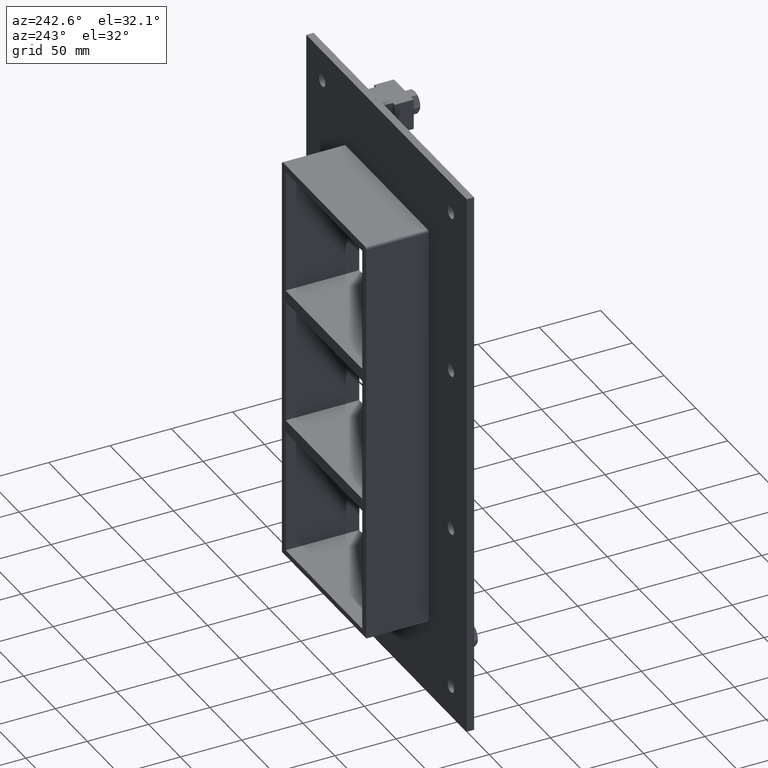
[diagram: clean part render]
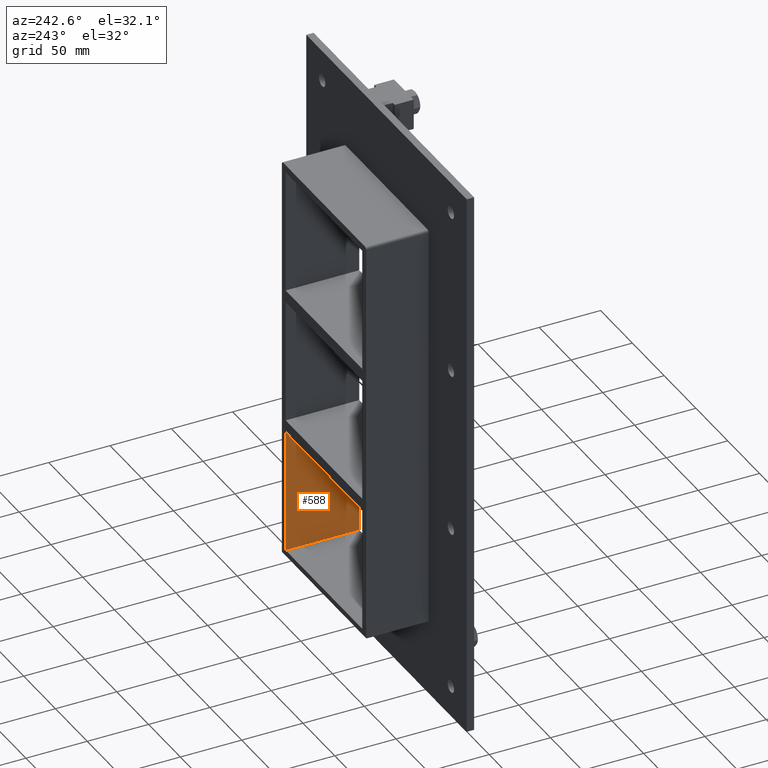
[diagram: same view with one face highlighted and labeled with its STEP entity id]
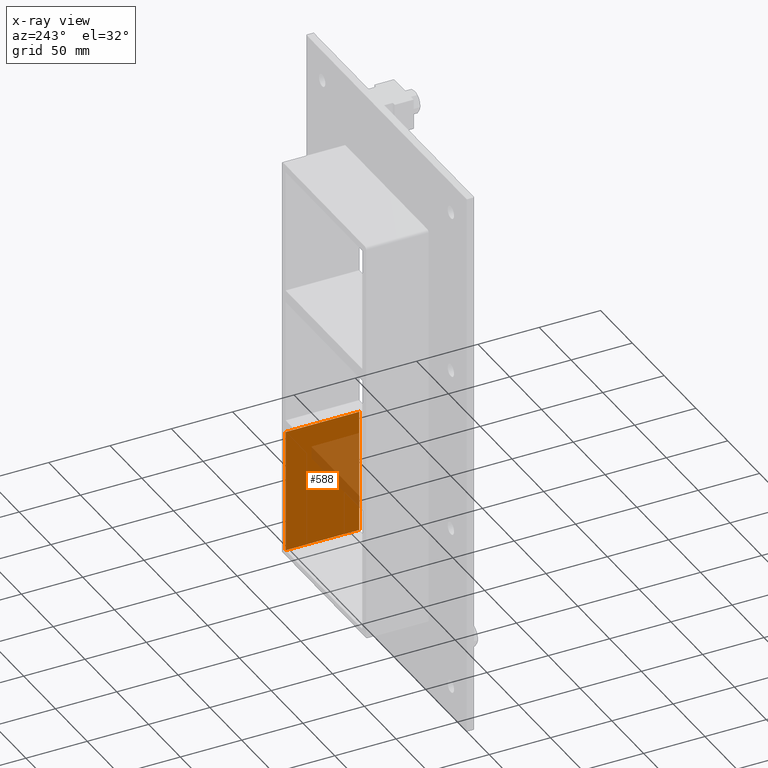
[diagram: x-ray of the same camera — body ghosted, the highlighted face saturated]
A machine part, auxiliary view. The second image highlights one B-rep face of the part: STEP entity #588.
The next image is the same camera in x-ray: the body ghosted, the highlighted face saturated — about 24% of this face is hidden behind the body in this view.
In plain terms, the highlighted planar face has unit normal (1, 0, 0).
Its self-contained STEP definition (entity closure, byte-faithful):
#470=CARTESIAN_POINT('',(60.249999999996362,-3.0,-60.500000000010971));
#471=VERTEX_POINT('',#470);
#488=CARTESIAN_POINT('',(60.249999999996362,57.0,-60.500000000010971));
#489=VERTEX_POINT('',#488);
#496=CARTESIAN_POINT('',(60.249999999999993,-3.0,-60.500000000010957));
#497=DIRECTION('',(0.0,1.0,0.0));
#498=VECTOR('',#497,60.000000000000007);
#499=LINE('',#496,#498);
#500=EDGE_CURVE('',#471,#489,#499,.T.);
#558=CARTESIAN_POINT('',(60.249999999999993,0.0,161.50000000000003));
#559=DIRECTION('',(1.0,0.0,0.0));
#560=DIRECTION('',(0.0,0.0,-1.0));
#561=AXIS2_PLACEMENT_3D('',#558,#559,#560);
#562=PLANE('',#561);
#563=ORIENTED_EDGE('',*,*,#500,.T.);
#564=CARTESIAN_POINT('',(60.249999999999993,57.0,-161.50000000000003));
#565=VERTEX_POINT('',#564);
#566=CARTESIAN_POINT('',(60.249999999999993,57.0,-161.5));
#567=DIRECTION('',(0.0,0.0,1.0));
#568=VECTOR('',#567,100.99999999998904);
#569=LINE('',#566,#568);
#570=EDGE_CURVE('',#565,#489,#569,.T.);
#571=ORIENTED_EDGE('',*,*,#570,.F.);
#572=CARTESIAN_POINT('',(60.249999999999993,-3.0,-161.50000000000003));
#573=VERTEX_POINT('',#572);
#574=CARTESIAN_POINT('',(60.249999999999993,56.999999999999993,-161.50000000000003));
#575=DIRECTION('',(0.0,-1.0,0.0));
#576=VECTOR('',#575,59.999999999999993);
#577=LINE('',#574,#576);
#578=EDGE_CURVE('',#565,#573,#577,.T.);
#579=ORIENTED_EDGE('',*,*,#578,.T.);
#580=CARTESIAN_POINT('',(60.249999999999993,-3.0,-60.500000000010957));
#581=DIRECTION('',(0.0,0.0,-1.0));
#582=VECTOR('',#581,100.99999999998904);
#583=LINE('',#580,#582);
#584=EDGE_CURVE('',#471,#573,#583,.T.);
#585=ORIENTED_EDGE('',*,*,#584,.F.);
#586=EDGE_LOOP('',(#563,#571,#579,#585));
#587=FACE_OUTER_BOUND('',#586,.T.);
#588=ADVANCED_FACE('',(#587),#562,.F.);